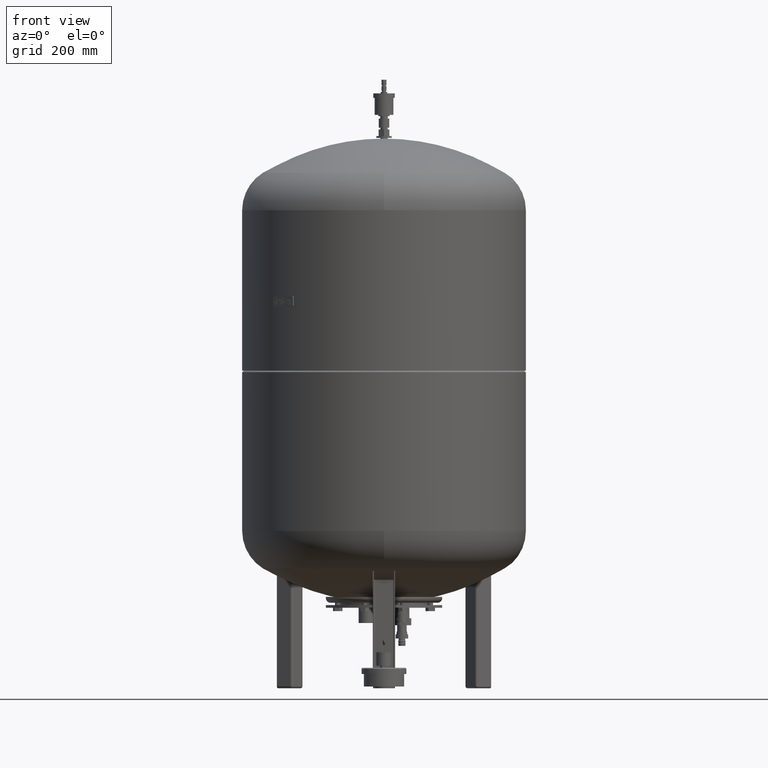
[diagram: clean part render]
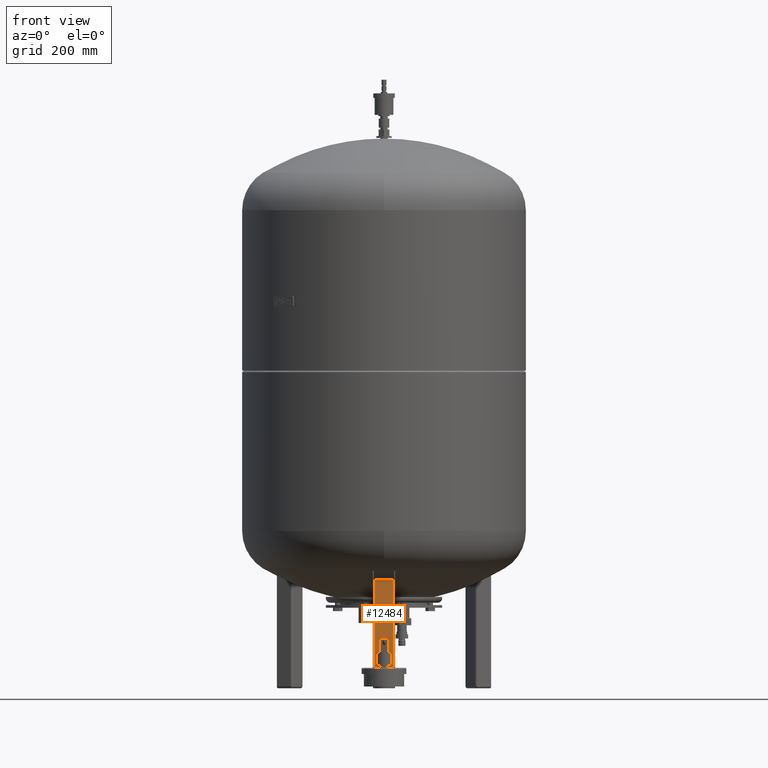
[diagram: same view with one face highlighted and labeled with its STEP entity id]
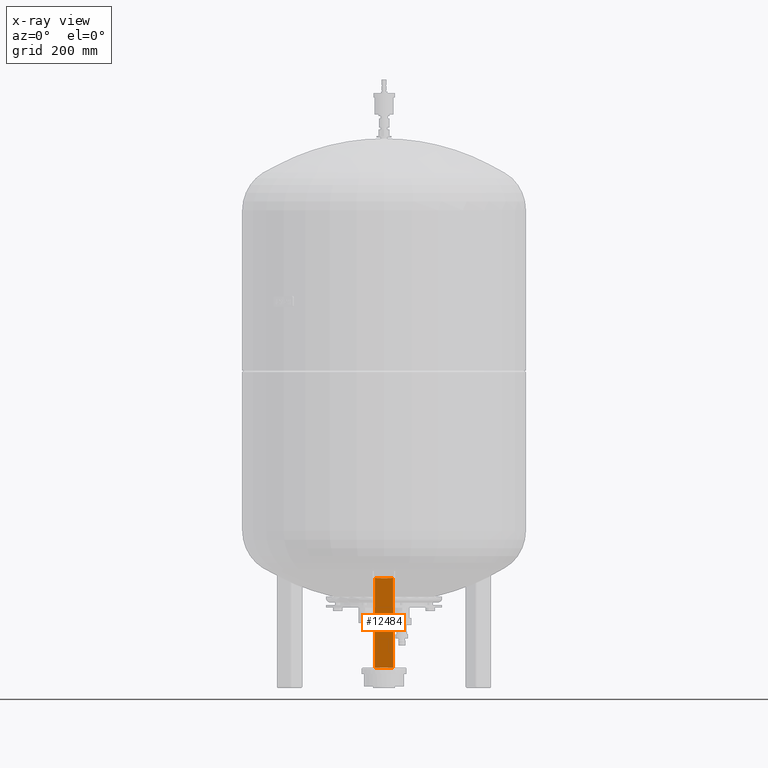
[diagram: x-ray of the same camera — body ghosted, the highlighted face saturated]
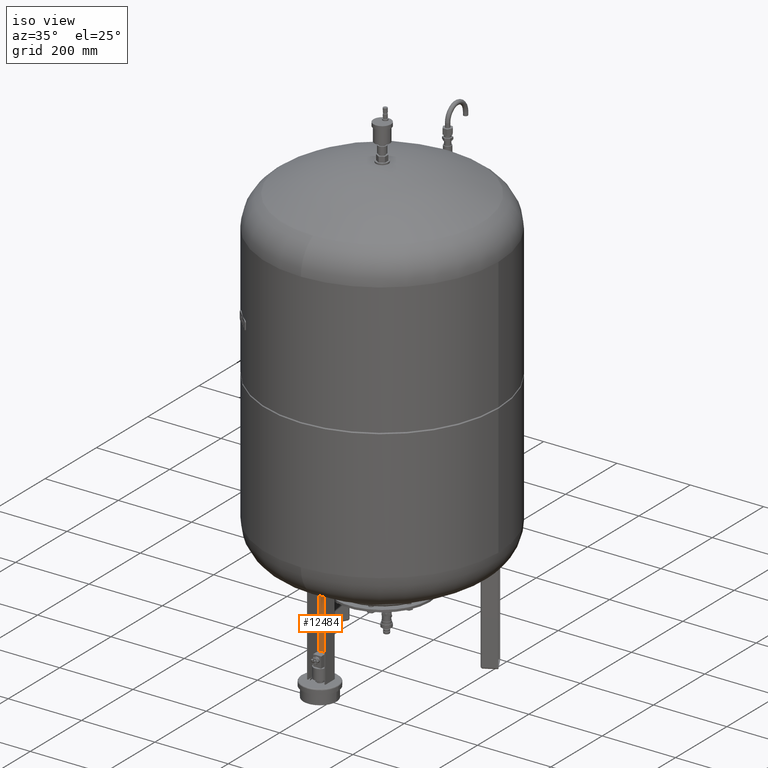
[diagram: same view with one face highlighted and labeled with its STEP entity id]
A machine part, front view. The second image highlights one B-rep face of the part: STEP entity #12484.
The next image is the same camera in x-ray: the body ghosted, the highlighted face saturated — about 0% of this face is hidden behind the body in this view.
A second angle (iso view) of the same face is appended — the face is thin or edge-on in the first view.
In plain terms, the highlighted planar face has unit normal (0, -1, 0).
Its self-contained STEP definition (entity closure, byte-faithful):
#12075=CARTESIAN_POINT('',(-20.0,-220.0,246.435936863778980));
#12076=VERTEX_POINT('',#12075);
#12099=CARTESIAN_POINT('',(20.0,-220.0,246.435936863778980));
#12100=VERTEX_POINT('',#12099);
#12101=CARTESIAN_POINT('',(-1.005746E-013,-219.999999999999970,705.0));
#12102=DIRECTION('',(0.0,1.0,0.0));
#12103=DIRECTION('',(0.0,0.0,1.0));
#12104=AXIS2_PLACEMENT_3D('',#12101,#12102,#12103);
#12105=CIRCLE('',#12104,459.000000000000110);
#12106=EDGE_CURVE('',#12100,#12076,#12105,.T.);
#12206=CARTESIAN_POINT('',(-20.0,-220.0,45.999999999999979));
#12207=VERTEX_POINT('',#12206);
#12215=CARTESIAN_POINT('',(-20.0,-220.0,45.999999999999979));
#12216=DIRECTION('',(0.0,0.0,1.0));
#12217=VECTOR('',#12216,200.435936863779010);
#12218=LINE('',#12215,#12217);
#12219=EDGE_CURVE('',#12207,#12076,#12218,.T.);
#12448=CARTESIAN_POINT('',(19.999999999999996,-220.0,45.999999999999979));
#12449=VERTEX_POINT('',#12448);
#12450=CARTESIAN_POINT('',(20.0,-220.0,246.435936863778980));
#12451=DIRECTION('',(0.0,0.0,-1.0));
#12452=VECTOR('',#12451,200.435936863779010);
#12453=LINE('',#12450,#12452);
#12454=EDGE_CURVE('',#12100,#12449,#12453,.T.);
#12468=CARTESIAN_POINT('',(22.500000000000000,-220.0,45.999999999999979));
#12469=DIRECTION('',(0.0,-1.0,0.0));
#12470=DIRECTION('',(1.0,0.0,0.0));
#12471=AXIS2_PLACEMENT_3D('',#12468,#12469,#12470);
#12472=PLANE('',#12471);
#12473=ORIENTED_EDGE('',*,*,#12219,.F.);
#12474=CARTESIAN_POINT('',(19.999999999999996,-220.0,45.999999999999979));
#12475=DIRECTION('',(-1.0,0.0,0.0));
#12476=VECTOR('',#12475,40.0);
#12477=LINE('',#12474,#12476);
#12478=EDGE_CURVE('',#12449,#12207,#12477,.T.);
#12479=ORIENTED_EDGE('',*,*,#12478,.F.);
#12480=ORIENTED_EDGE('',*,*,#12454,.F.);
#12481=ORIENTED_EDGE('',*,*,#12106,.T.);
#12482=EDGE_LOOP('',(#12473,#12479,#12480,#12481));
#12483=FACE_OUTER_BOUND('',#12482,.T.);
#12484=ADVANCED_FACE('',(#12483),#12472,.T.);